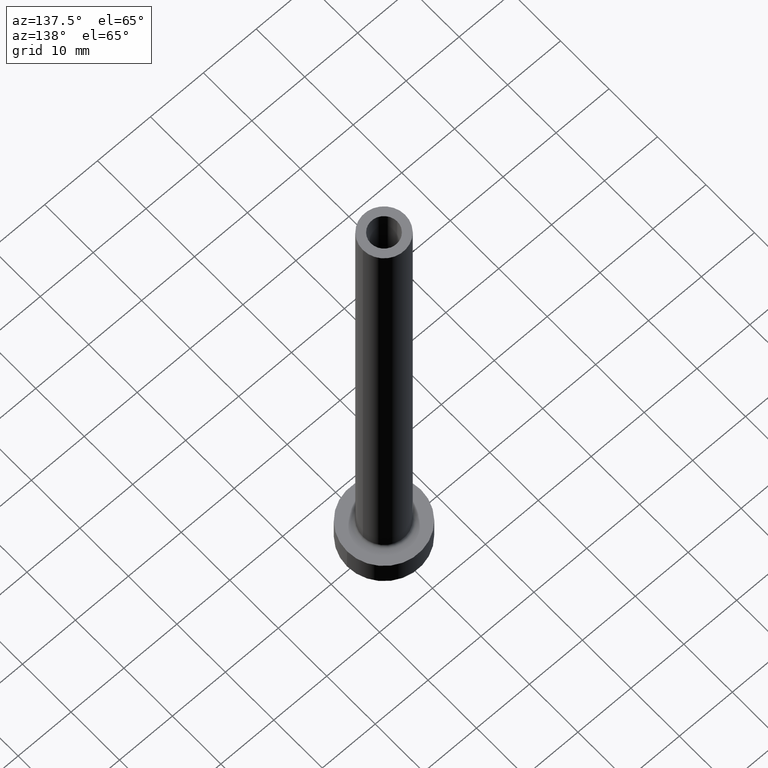
[diagram: clean part render]
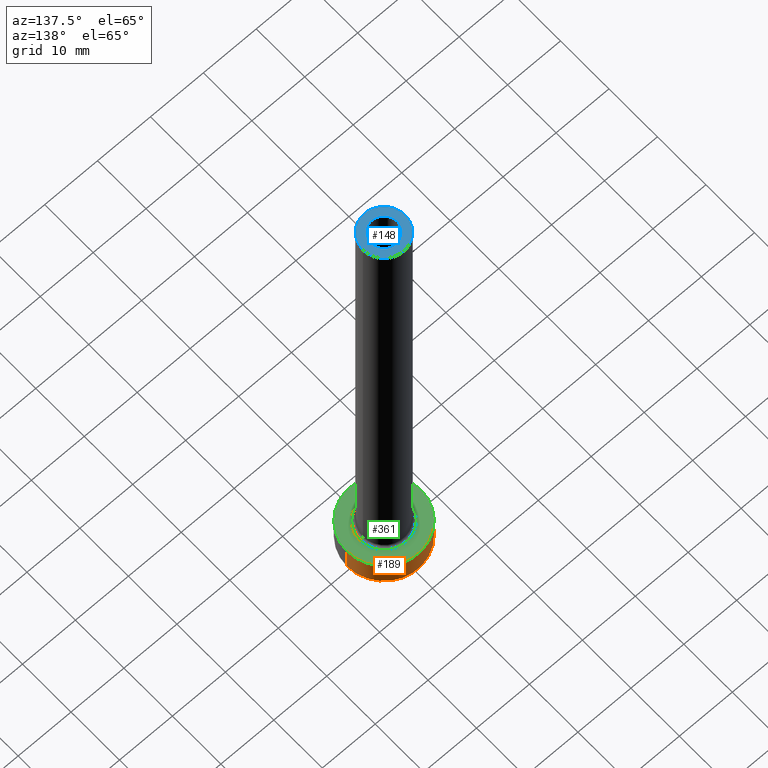
[diagram: same view with three faces highlighted in distinct colors, each labeled with its STEP entity id]
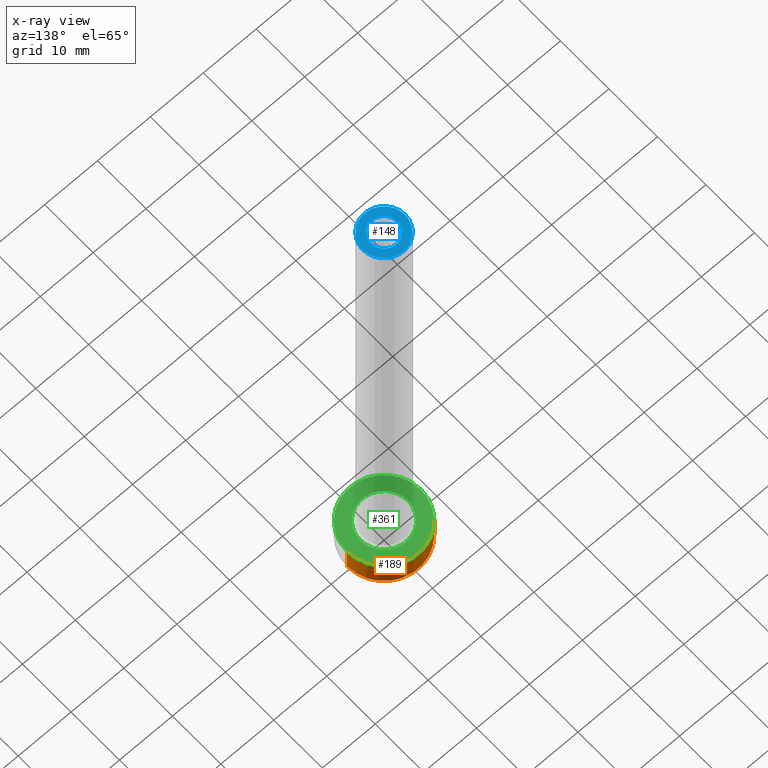
[diagram: x-ray of the same camera — body ghosted, the three highlighted faces saturated]
A machine part, auxiliary view with three faces highlighted in distinct colors.
The next image is the same camera in x-ray (body ghosted, the three faces saturated) — at least one of them is partly hidden behind the body in this view.
Their STEP definitions:

[orange] entity #189 — the highlighted cylindrical surface (partial cylindrical patch) has radius 7 mm, axis along (-0, -0, -1).
#27 = EDGE_CURVE ( 'NONE', #422, #368, #266, .T. ) ;
#42 = ORIENTED_EDGE ( 'NONE', *, *, #97, .T. ) ;
#50 = EDGE_CURVE ( 'NONE', #186, #422, #380, .T. ) ;
#55 = DIRECTION ( 'NONE',  ( -1.000000000000000000, 0.000000000000000000, 0.000000000000000000 ) ) ;
#84 = VECTOR ( 'NONE', #242, 1000.000000000000000 ) ;
#86 = CARTESIAN_POINT ( 'NONE',  ( -7.000000000000000000, 0.000000000000000000, 5.000000000000000000 ) ) ;
#90 = DIRECTION ( 'NONE',  ( 0.000000000000000000, 0.000000000000000000, 1.000000000000000000 ) ) ;
#97 = EDGE_CURVE ( 'NONE', #186, #454, #277, .T. ) ;
#110 = VECTOR ( 'NONE', #455, 1000.000000000000000 ) ;
#133 = CARTESIAN_POINT ( 'NONE',  ( 0.000000000000000000, 0.000000000000000000, 5.000000000000000000 ) ) ;
#175 = CARTESIAN_POINT ( 'NONE',  ( -7.000000000000000000, 0.000000000000000000, 0.000000000000000000 ) ) ;
#181 = FACE_OUTER_BOUND ( 'NONE', #257, .T. ) ;
#186 = VERTEX_POINT ( 'NONE', #213 ) ;
#189 = ADVANCED_FACE ( 'NONE', ( #181 ), #318, .T. ) ;
#200 = CARTESIAN_POINT ( 'NONE',  ( 0.000000000000000000, 0.000000000000000000, 0.000000000000000000 ) ) ;
#211 = AXIS2_PLACEMENT_3D ( 'NONE', #200, #338, #352 ) ;
#213 = CARTESIAN_POINT ( 'NONE',  ( 7.000000000000000000, 8.572527594031473190E-16, 5.000000000000000000 ) ) ;
#227 = ORIENTED_EDGE ( 'NONE', *, *, #27, .F. ) ;
#242 = DIRECTION ( 'NONE',  ( -0.000000000000000000, -0.000000000000000000, -1.000000000000000000 ) ) ;
#257 = EDGE_LOOP ( 'NONE', ( #419, #42, #403, #227 ) ) ;
#266 = LINE ( 'NONE', #86, #110 ) ;
#277 = LINE ( 'NONE', #381, #84 ) ;
#318 = CYLINDRICAL_SURFACE ( 'NONE', #439, 7.000000000000000000 ) ;
#338 = DIRECTION ( 'NONE',  ( 0.000000000000000000, 0.000000000000000000, 1.000000000000000000 ) ) ;
#352 = DIRECTION ( 'NONE',  ( 1.000000000000000000, 0.000000000000000000, 0.000000000000000000 ) ) ;
#357 = CARTESIAN_POINT ( 'NONE',  ( -7.000000000000000000, 0.000000000000000000, 5.000000000000000000 ) ) ;
#362 = AXIS2_PLACEMENT_3D ( 'NONE', #415, #90, #442 ) ;
#365 = CARTESIAN_POINT ( 'NONE',  ( 7.000000000000000000, 8.572527594031473190E-16, 0.000000000000000000 ) ) ;
#368 = VERTEX_POINT ( 'NONE', #175 ) ;
#377 = EDGE_CURVE ( 'NONE', #454, #368, #408, .T. ) ;
#380 = CIRCLE ( 'NONE', #362, 7.000000000000000000 ) ;
#381 = CARTESIAN_POINT ( 'NONE',  ( 7.000000000000000000, 8.572527594031473190E-16, 5.000000000000000000 ) ) ;
#403 = ORIENTED_EDGE ( 'NONE', *, *, #377, .T. ) ;
#408 = CIRCLE ( 'NONE', #211, 7.000000000000000000 ) ;
#410 = DIRECTION ( 'NONE',  ( -0.000000000000000000, -0.000000000000000000, -1.000000000000000000 ) ) ;
#415 = CARTESIAN_POINT ( 'NONE',  ( 0.000000000000000000, 0.000000000000000000, 5.000000000000000000 ) ) ;
#419 = ORIENTED_EDGE ( 'NONE', *, *, #50, .F. ) ;
#422 = VERTEX_POINT ( 'NONE', #357 ) ;
#439 = AXIS2_PLACEMENT_3D ( 'NONE', #133, #410, #55 ) ;
#442 = DIRECTION ( 'NONE',  ( 1.000000000000000000, 0.000000000000000000, 0.000000000000000000 ) ) ;
#454 = VERTEX_POINT ( 'NONE', #365 ) ;
#455 = DIRECTION ( 'NONE',  ( -0.000000000000000000, -0.000000000000000000, -1.000000000000000000 ) ) ;

[blue] entity #148 — the highlighted planar face has unit normal (0, 0, 1).
#4 = VERTEX_POINT ( 'NONE', #438 ) ;
#20 = CARTESIAN_POINT ( 'NONE',  ( 0.000000000000000000, 0.000000000000000000, 100.0000000000000000 ) ) ;
#22 = ORIENTED_EDGE ( 'NONE', *, *, #177, .T. ) ;
#43 = ORIENTED_EDGE ( 'NONE', *, *, #54, .F. ) ;
#54 = EDGE_CURVE ( 'NONE', #4, #358, #309, .T. ) ;
#65 = EDGE_CURVE ( 'NONE', #358, #4, #288, .T. ) ;
#66 = DIRECTION ( 'NONE',  ( 1.000000000000000000, 0.000000000000000000, 0.000000000000000000 ) ) ;
#70 = CARTESIAN_POINT ( 'NONE',  ( 0.000000000000000000, 0.000000000000000000, 100.0000000000000000 ) ) ;
#95 = CARTESIAN_POINT ( 'NONE',  ( 0.000000000000000000, 0.000000000000000000, 100.0000000000000000 ) ) ;
#98 = DIRECTION ( 'NONE',  ( 0.000000000000000000, 0.000000000000000000, 1.000000000000000000 ) ) ;
#107 = EDGE_LOOP ( 'NONE', ( #22, #169 ) ) ;
#112 = DIRECTION ( 'NONE',  ( 0.000000000000000000, 0.000000000000000000, 1.000000000000000000 ) ) ;
#117 = AXIS2_PLACEMENT_3D ( 'NONE', #310, #176, #174 ) ;
#123 = CIRCLE ( 'NONE', #414, 4.000000000000000000 ) ;
#129 = ORIENTED_EDGE ( 'NONE', *, *, #65, .F. ) ;
#135 = DIRECTION ( 'NONE',  ( 1.000000000000000000, 0.000000000000000000, 0.000000000000000000 ) ) ;
#148 = ADVANCED_FACE ( 'NONE', ( #272, #350 ), #237, .T. ) ;
#161 = AXIS2_PLACEMENT_3D ( 'NONE', #429, #112, #396 ) ;
#169 = ORIENTED_EDGE ( 'NONE', *, *, #452, .T. ) ;
#172 = DIRECTION ( 'NONE',  ( 1.000000000000000000, 0.000000000000000000, -0.000000000000000000 ) ) ;
#174 = DIRECTION ( 'NONE',  ( 1.000000000000000000, 0.000000000000000000, 0.000000000000000000 ) ) ;
#176 = DIRECTION ( 'NONE',  ( 0.000000000000000000, 0.000000000000000000, 1.000000000000000000 ) ) ;
#177 = EDGE_CURVE ( 'NONE', #280, #241, #123, .T. ) ;
#235 = DIRECTION ( 'NONE',  ( 0.000000000000000000, 0.000000000000000000, 1.000000000000000000 ) ) ;
#237 = PLANE ( 'NONE',  #267 ) ;
#241 = VERTEX_POINT ( 'NONE', #434 ) ;
#267 = AXIS2_PLACEMENT_3D ( 'NONE', #20, #98, #172 ) ;
#272 = FACE_BOUND ( 'NONE', #388, .T. ) ;
#280 = VERTEX_POINT ( 'NONE', #453 ) ;
#288 = CIRCLE ( 'NONE', #117, 2.500000000000000000 ) ;
#304 = CIRCLE ( 'NONE', #161, 4.000000000000000000 ) ;
#309 = CIRCLE ( 'NONE', #369, 2.500000000000000000 ) ;
#310 = CARTESIAN_POINT ( 'NONE',  ( 0.000000000000000000, 0.000000000000000000, 100.0000000000000000 ) ) ;
#344 = DIRECTION ( 'NONE',  ( 0.000000000000000000, 0.000000000000000000, 1.000000000000000000 ) ) ;
#350 = FACE_OUTER_BOUND ( 'NONE', #107, .T. ) ;
#358 = VERTEX_POINT ( 'NONE', #376 ) ;
#369 = AXIS2_PLACEMENT_3D ( 'NONE', #95, #235, #135 ) ;
#376 = CARTESIAN_POINT ( 'NONE',  ( -2.500000000000000000, 0.000000000000000000, 100.0000000000000000 ) ) ;
#388 = EDGE_LOOP ( 'NONE', ( #129, #43 ) ) ;
#396 = DIRECTION ( 'NONE',  ( 1.000000000000000000, 0.000000000000000000, 0.000000000000000000 ) ) ;
#414 = AXIS2_PLACEMENT_3D ( 'NONE', #70, #344, #66 ) ;
#429 = CARTESIAN_POINT ( 'NONE',  ( 0.000000000000000000, 0.000000000000000000, 100.0000000000000000 ) ) ;
#434 = CARTESIAN_POINT ( 'NONE',  ( 4.000000000000000000, 4.898587196589412829E-16, 100.0000000000000000 ) ) ;
#438 = CARTESIAN_POINT ( 'NONE',  ( 2.500000000000000000, 3.061616997868382648E-16, 100.0000000000000000 ) ) ;
#452 = EDGE_CURVE ( 'NONE', #241, #280, #304, .T. ) ;
#453 = CARTESIAN_POINT ( 'NONE',  ( -4.000000000000000000, 0.000000000000000000, 100.0000000000000000 ) ) ;

[green] entity #361 — the highlighted planar face has unit normal (0, 0, 1).
#12 = DIRECTION ( 'NONE',  ( 1.000000000000000000, 0.000000000000000000, 0.000000000000000000 ) ) ;
#15 = EDGE_CURVE ( 'NONE', #194, #219, #249, .T. ) ;
#17 = CARTESIAN_POINT ( 'NONE',  ( -4.500000000000000888, 5.510910596163088569E-16, 5.000000000000002665 ) ) ;
#26 = AXIS2_PLACEMENT_3D ( 'NONE', #61, #448, #387 ) ;
#47 = EDGE_LOOP ( 'NONE', ( #180, #339 ) ) ;
#50 = EDGE_CURVE ( 'NONE', #186, #422, #380, .T. ) ;
#61 = CARTESIAN_POINT ( 'NONE',  ( 0.000000000000000000, 0.000000000000000000, 5.000000000000000000 ) ) ;
#64 = FACE_OUTER_BOUND ( 'NONE', #47, .T. ) ;
#77 = CIRCLE ( 'NONE', #130, 7.000000000000000000 ) ;
#90 = DIRECTION ( 'NONE',  ( 0.000000000000000000, 0.000000000000000000, 1.000000000000000000 ) ) ;
#91 = DIRECTION ( 'NONE',  ( 0.000000000000000000, 0.000000000000000000, 1.000000000000000000 ) ) ;
#124 = CARTESIAN_POINT ( 'NONE',  ( 0.000000000000000000, 0.000000000000000000, 5.000000000000000000 ) ) ;
#130 = AXIS2_PLACEMENT_3D ( 'NONE', #168, #91, #308 ) ;
#159 = DIRECTION ( 'NONE',  ( 1.000000000000000000, 0.000000000000000000, 0.000000000000000000 ) ) ;
#165 = DIRECTION ( 'NONE',  ( -0.000000000000000000, -0.000000000000000000, -1.000000000000000000 ) ) ;
#168 = CARTESIAN_POINT ( 'NONE',  ( 0.000000000000000000, 0.000000000000000000, 5.000000000000000000 ) ) ;
#180 = ORIENTED_EDGE ( 'NONE', *, *, #398, .T. ) ;
#186 = VERTEX_POINT ( 'NONE', #213 ) ;
#192 = ORIENTED_EDGE ( 'NONE', *, *, #15, .T. ) ;
#194 = VERTEX_POINT ( 'NONE', #458 ) ;
#198 = CARTESIAN_POINT ( 'NONE',  ( 0.000000000000000000, 0.000000000000000000, 5.000000000000000000 ) ) ;
#213 = CARTESIAN_POINT ( 'NONE',  ( 7.000000000000000000, 8.572527594031473190E-16, 5.000000000000000000 ) ) ;
#219 = VERTEX_POINT ( 'NONE', #17 ) ;
#229 = AXIS2_PLACEMENT_3D ( 'NONE', #198, #165, #159 ) ;
#249 = CIRCLE ( 'NONE', #229, 4.500000000000000888 ) ;
#250 = EDGE_CURVE ( 'NONE', #219, #194, #359, .T. ) ;
#292 = AXIS2_PLACEMENT_3D ( 'NONE', #124, #333, #12 ) ;
#308 = DIRECTION ( 'NONE',  ( 1.000000000000000000, 0.000000000000000000, 0.000000000000000000 ) ) ;
#311 = FACE_BOUND ( 'NONE', #433, .T. ) ;
#325 = ORIENTED_EDGE ( 'NONE', *, *, #250, .T. ) ;
#333 = DIRECTION ( 'NONE',  ( -0.000000000000000000, -0.000000000000000000, -1.000000000000000000 ) ) ;
#339 = ORIENTED_EDGE ( 'NONE', *, *, #50, .T. ) ;
#357 = CARTESIAN_POINT ( 'NONE',  ( -7.000000000000000000, 0.000000000000000000, 5.000000000000000000 ) ) ;
#359 = CIRCLE ( 'NONE', #292, 4.500000000000000888 ) ;
#361 = ADVANCED_FACE ( 'NONE', ( #311, #64 ), #372, .T. ) ;
#362 = AXIS2_PLACEMENT_3D ( 'NONE', #415, #90, #442 ) ;
#372 = PLANE ( 'NONE',  #26 ) ;
#380 = CIRCLE ( 'NONE', #362, 7.000000000000000000 ) ;
#387 = DIRECTION ( 'NONE',  ( 1.000000000000000000, 0.000000000000000000, -0.000000000000000000 ) ) ;
#398 = EDGE_CURVE ( 'NONE', #422, #186, #77, .T. ) ;
#415 = CARTESIAN_POINT ( 'NONE',  ( 0.000000000000000000, 0.000000000000000000, 5.000000000000000000 ) ) ;
#422 = VERTEX_POINT ( 'NONE', #357 ) ;
#433 = EDGE_LOOP ( 'NONE', ( #192, #325 ) ) ;
#442 = DIRECTION ( 'NONE',  ( 1.000000000000000000, 0.000000000000000000, 0.000000000000000000 ) ) ;
#448 = DIRECTION ( 'NONE',  ( 0.000000000000000000, 0.000000000000000000, 1.000000000000000000 ) ) ;
#458 = CARTESIAN_POINT ( 'NONE',  ( 4.500000000000000888, 0.000000000000000000, 5.000000000000002665 ) ) ;